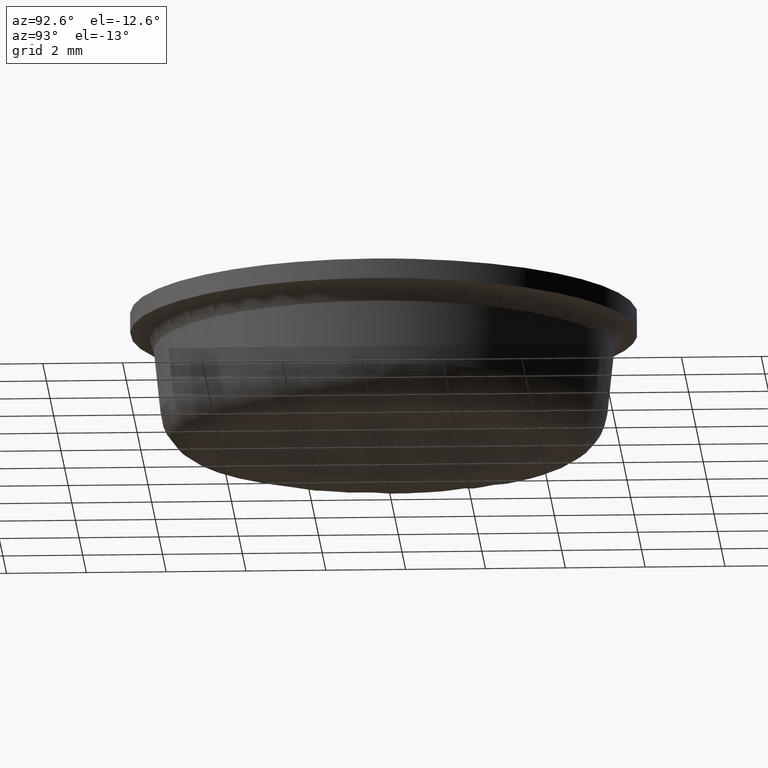
[diagram: clean part render]
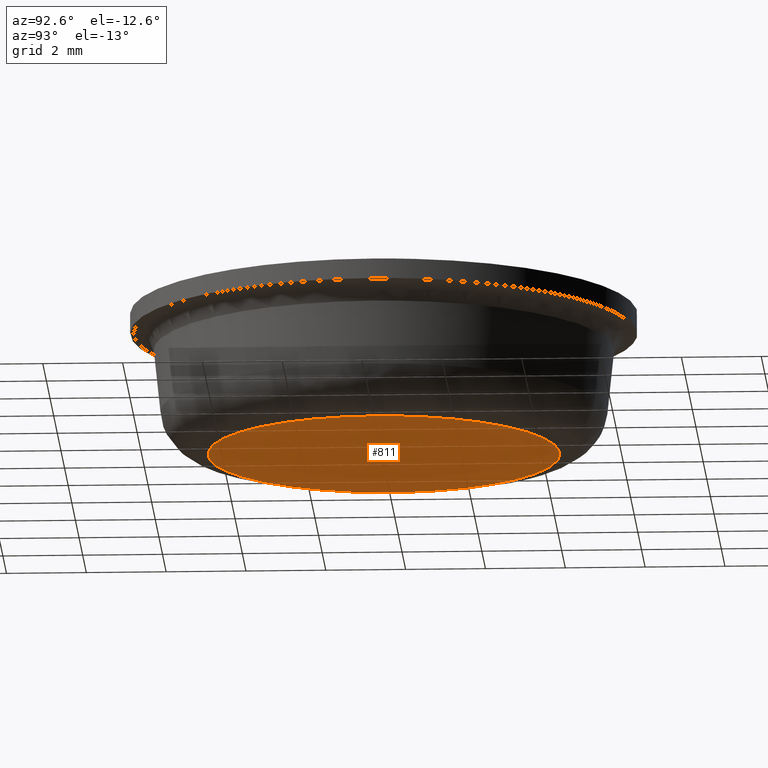
[diagram: same view with one face highlighted and labeled with its STEP entity id]
A machine part, auxiliary view. The second image highlights one B-rep face of the part: STEP entity #811.
In plain terms, the highlighted face is a freeform B-spline surface patch.
Its self-contained STEP definition (entity closure, byte-faithful):
#511=CARTESIAN_POINT('',(0.135379056133082,4.402461987626563,1.718965E-014));
#512=VERTEX_POINT('',#511);
#513=CARTESIAN_POINT('',(4.404543000000000,0.0,0.0));
#514=VERTEX_POINT('',#513);
#515=CARTESIAN_POINT('',(0.135379056133082,4.402461987626563,1.718965E-014));
#516=CARTESIAN_POINT('',(4.404542999999999,4.271181947444160,1.744104E-014));
#517=CARTESIAN_POINT('',(4.404543000000000,0.0,0.0));
#525=(BOUNDED_CURVE()B_SPLINE_CURVE(2,(#515,#516,#517),.UNSPECIFIED.,.F.,.U.)B_SPLINE_CURVE_WITH_KNOTS((3,3),(0.255400348394716,0.500000000000000),.UNSPECIFIED.)CURVE()GEOMETRIC_REPRESENTATION_ITEM()RATIONAL_B_SPLINE_CURVE((0.987619536395008,0.713433682882717,1.0))REPRESENTATION_ITEM(''));
#526=EDGE_CURVE('',#512,#514,#525,.T.);
#546=CARTESIAN_POINT('',(-4.387513315526101,0.386944372883419,1.721139E-014));
#547=VERTEX_POINT('',#546);
#561=CARTESIAN_POINT('',(-4.404543000000000,0.0,1.798561E-014));
#562=VERTEX_POINT('',#561);
#563=CARTESIAN_POINT('',(-4.404543000000000,0.0,1.798561E-014));
#564=CARTESIAN_POINT('',(-4.404543000000001,0.193846930451076,1.798561E-014));
#565=CARTESIAN_POINT('',(-4.387513315526101,0.386944372883419,1.721139E-014));
#573=(BOUNDED_CURVE()B_SPLINE_CURVE(2,(#563,#564,#565),.UNSPECIFIED.,.F.,.U.)B_SPLINE_CURVE_WITH_KNOTS((3,3),(0.0,0.015281545147581),.UNSPECIFIED.)CURVE()GEOMETRIC_REPRESENTATION_ITEM()RATIONAL_B_SPLINE_CURVE((1.0,0.982096556213127,0.966381850702465))REPRESENTATION_ITEM(''));
#574=EDGE_CURVE('',#562,#547,#573,.T.);
#576=CARTESIAN_POINT('',(4.404543000000000,0.0,0.0));
#577=CARTESIAN_POINT('',(4.404543000000001,-4.404543000000001,1.798561E-014));
#578=CARTESIAN_POINT('',(0.0,-4.404543000000000,1.798561E-014));
#579=CARTESIAN_POINT('',(-4.404543000000001,-4.404543000000001,1.798561E-014));
#580=CARTESIAN_POINT('',(-4.404543000000000,0.0,1.798561E-014));
#588=(BOUNDED_CURVE()B_SPLINE_CURVE(2,(#576,#577,#578,#579,#580),.UNSPECIFIED.,.F.,.U.)B_SPLINE_CURVE_WITH_KNOTS((3,2,3),(0.500000000000000,0.750000000000000,1.0),.UNSPECIFIED.)CURVE()GEOMETRIC_REPRESENTATION_ITEM()RATIONAL_B_SPLINE_CURVE((1.0,0.707106781186547,1.0,0.707106781186547,1.0))REPRESENTATION_ITEM(''));
#589=EDGE_CURVE('',#514,#562,#588,.T.);
#611=CARTESIAN_POINT('',(-4.387513315526101,0.386944372883419,1.721139E-014));
#612=CARTESIAN_POINT('',(-4.033192525810867,4.404543000000001,1.798561E-014));
#613=CARTESIAN_POINT('',(0.0,4.404543000000000,1.798561E-014));
#614=CARTESIAN_POINT('',(0.067705522485529,4.404543000000000,1.798561E-014));
#615=CARTESIAN_POINT('',(0.135379056133082,4.402461987626563,1.718965E-014));
#623=(BOUNDED_CURVE()B_SPLINE_CURVE(2,(#611,#612,#613,#614,#615),.UNSPECIFIED.,.F.,.U.)B_SPLINE_CURVE_WITH_KNOTS((3,2,3),(0.015281545147581,0.250000000000000,0.255400348394716),.UNSPECIFIED.)CURVE()GEOMETRIC_REPRESENTATION_ITEM()RATIONAL_B_SPLINE_CURVE((0.966381850702465,0.725010224973420,1.0,0.993673098303831,0.987619536395009))REPRESENTATION_ITEM(''));
#624=EDGE_CURVE('',#547,#512,#623,.T.);
#800=CARTESIAN_POINT('',(-4.844556745932886,-4.844513998439815,8.992806E-015));
#801=CARTESIAN_POINT('',(4.844557060970351,-4.844513998439815,8.992806E-015));
#802=CARTESIAN_POINT('',(-4.844556745932886,4.843658507263942,8.992806E-015));
#803=CARTESIAN_POINT('',(4.844557060970351,4.843658507263942,8.992806E-015));
#804=B_SPLINE_SURFACE_WITH_KNOTS('',1,1,((#800,#802),(#801,#803)),.UNSPECIFIED.,.F.,.F.,.U.,(2,2),(2,2),(0.0,9.689113806903237),(0.0,9.688172505703758),.UNSPECIFIED.);
#805=ORIENTED_EDGE('',*,*,#574,.T.);
#806=ORIENTED_EDGE('',*,*,#624,.T.);
#807=ORIENTED_EDGE('',*,*,#526,.T.);
#808=ORIENTED_EDGE('',*,*,#589,.T.);
#809=EDGE_LOOP('',(#805,#806,#807,#808));
#810=FACE_OUTER_BOUND('',#809,.T.);
#811=ADVANCED_FACE('',(#810),#804,.F.);